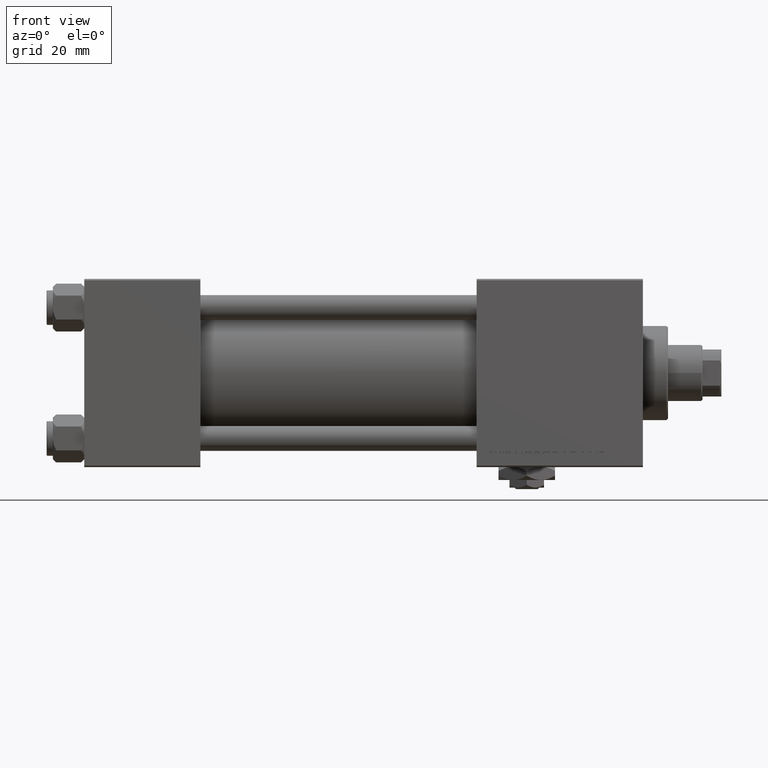
[diagram: clean part render]
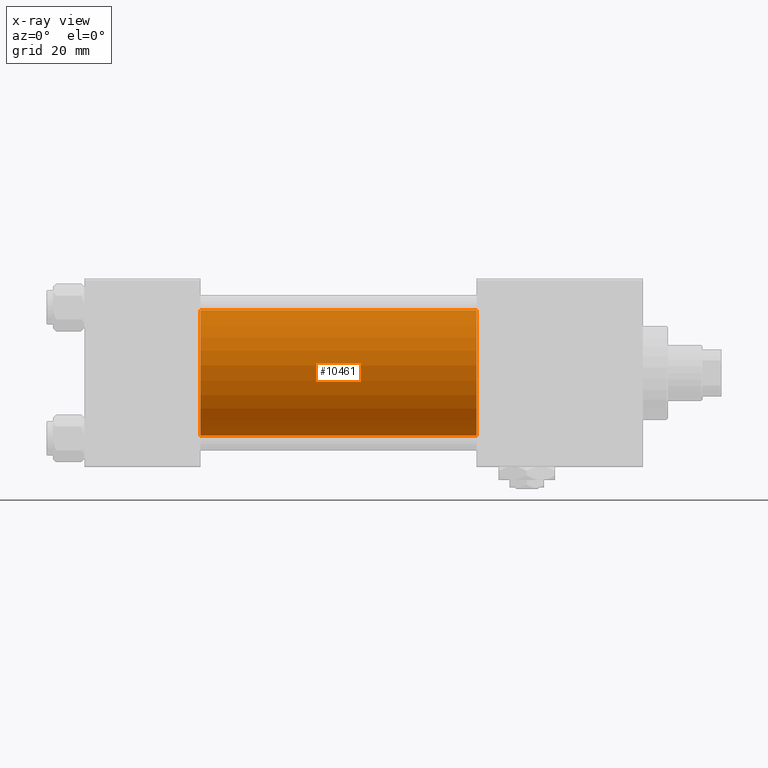
[diagram: x-ray — body ghosted, one internal face saturated and labeled with its STEP entity id]
A machine part, front view, then the same camera in x-ray: the body is ghosted and one INTERNAL B-rep face — a face not visible from any outside direction — is saturated and labeled: STEP entity #10461.
In plain terms, the highlighted cylindrical surface (partial cylindrical patch) has radius 20 mm, axis along (-1, -0, -0).
Its self-contained STEP definition (entity closure, byte-faithful):
#1615 = EDGE_CURVE ( 'NONE', #51815, #23100, #16933, .T. ) ;
#1956 = DIRECTION ( 'NONE',  ( 1.000000000000000000, 0.000000000000000000, 0.000000000000000000 ) ) ;
#2864 = EDGE_CURVE ( 'NONE', #38707, #23100, #48963, .T. ) ;
#3560 = VECTOR ( 'NONE', #33719, 1000.000000000000000 ) ;
#3977 = DIRECTION ( 'NONE',  ( -1.000000000000000000, -0.000000000000000000, -0.000000000000000000 ) ) ;
#5098 = DIRECTION ( 'NONE',  ( 0.000000000000000000, 0.000000000000000000, -1.000000000000000000 ) ) ;
#5755 = DIRECTION ( 'NONE',  ( 0.000000000000000000, 0.000000000000000000, 1.000000000000000000 ) ) ;
#9029 = CARTESIAN_POINT ( 'NONE',  ( 37.00000000000000000, -2.602085213965210642E-15, 20.00000000000000000 ) ) ;
#10461 = ADVANCED_FACE ( 'NONE', ( #13912 ), #42012, .F. ) ;
#10496 = DIRECTION ( 'NONE',  ( -1.000000000000000000, -0.000000000000000000, -0.000000000000000000 ) ) ;
#11864 = CARTESIAN_POINT ( 'NONE',  ( 125.0000000000000000, -2.602085213965210642E-15, 20.00000000000000000 ) ) ;
#13912 = FACE_OUTER_BOUND ( 'NONE', #24996, .T. ) ;
#16933 = CIRCLE ( 'NONE', #32872, 20.00000000000000000 ) ;
#17698 = VECTOR ( 'NONE', #3977, 1000.000000000000000 ) ;
#17701 = CARTESIAN_POINT ( 'NONE',  ( 125.0000000000000000, -1.527916156705042519E-16, -20.00000000000000000 ) ) ;
#18629 = DIRECTION ( 'NONE',  ( 0.000000000000000000, 0.000000000000000000, -1.000000000000000000 ) ) ;
#23100 = VERTEX_POINT ( 'NONE', #43715 ) ;
#23494 = EDGE_CURVE ( 'NONE', #32918, #51815, #31823, .T. ) ;
#24010 = CARTESIAN_POINT ( 'NONE',  ( 125.0000000000000000, -1.527916156705042519E-16, -20.00000000000000000 ) ) ;
#24996 = EDGE_LOOP ( 'NONE', ( #39275, #45787, #40712, #51239 ) ) ;
#30025 = CARTESIAN_POINT ( 'NONE',  ( 125.0000000000000000, -2.602085213965210642E-15, 20.00000000000000000 ) ) ;
#30984 = CARTESIAN_POINT ( 'NONE',  ( 125.0000000000000000, -2.602085213965210642E-15, 0.000000000000000000 ) ) ;
#31823 = LINE ( 'NONE', #11864, #17698 ) ;
#32872 = AXIS2_PLACEMENT_3D ( 'NONE', #38853, #34917, #18629 ) ;
#32918 = VERTEX_POINT ( 'NONE', #30025 ) ;
#33719 = DIRECTION ( 'NONE',  ( -1.000000000000000000, -0.000000000000000000, -0.000000000000000000 ) ) ;
#34917 = DIRECTION ( 'NONE',  ( 1.000000000000000000, 0.000000000000000000, 0.000000000000000000 ) ) ;
#38707 = VERTEX_POINT ( 'NONE', #24010 ) ;
#38853 = CARTESIAN_POINT ( 'NONE',  ( 37.00000000000000000, -2.602085213965210642E-15, 0.000000000000000000 ) ) ;
#39275 = ORIENTED_EDGE ( 'NONE', *, *, #41534, .T. ) ;
#40712 = ORIENTED_EDGE ( 'NONE', *, *, #1615, .F. ) ;
#41100 = CARTESIAN_POINT ( 'NONE',  ( 125.0000000000000000, -2.602085213965210642E-15, 0.000000000000000000 ) ) ;
#41534 = EDGE_CURVE ( 'NONE', #32918, #38707, #42694, .T. ) ;
#42012 = CYLINDRICAL_SURFACE ( 'NONE', #43112, 20.00000000000000000 ) ;
#42694 = CIRCLE ( 'NONE', #46023, 20.00000000000000000 ) ;
#43112 = AXIS2_PLACEMENT_3D ( 'NONE', #30984, #10496, #5755 ) ;
#43715 = CARTESIAN_POINT ( 'NONE',  ( 37.00000000000000000, -1.527916156705042519E-16, -20.00000000000000000 ) ) ;
#45787 = ORIENTED_EDGE ( 'NONE', *, *, #2864, .T. ) ;
#46023 = AXIS2_PLACEMENT_3D ( 'NONE', #41100, #1956, #5098 ) ;
#48963 = LINE ( 'NONE', #17701, #3560 ) ;
#51239 = ORIENTED_EDGE ( 'NONE', *, *, #23494, .F. ) ;
#51815 = VERTEX_POINT ( 'NONE', #9029 ) ;